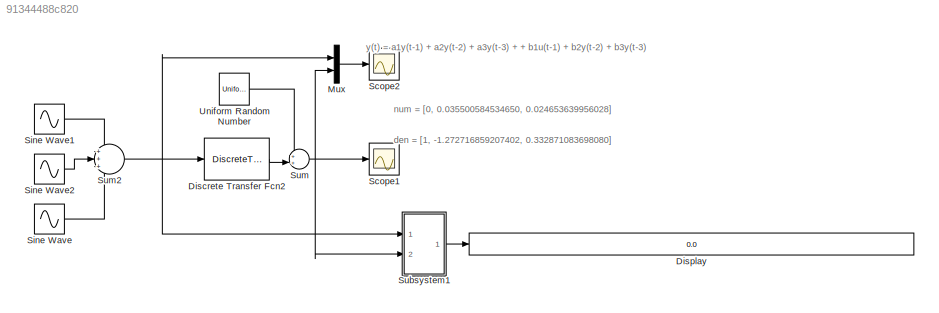
MODEL slx_91344488c820
KIND model
CONFIG AbsTol = auto
CONFIG EnableMultiTasking = off
CONFIG FixedStep = auto
CONFIG MaxStep = auto
CONFIG MinStep = auto
CONFIG RelTol = 1e-3
CONFIG SampleTimeConstraint = Unconstrained
CONFIG Solver = VariableStepAuto
CONFIG SolverName = VariableStepAuto
CONFIG StartTime = 0.0
CONFIG StopTime = 100
BLOCK [DiscreteTransferFcn] Discrete Transfer Fcn2
  Denominator = den
  InputPortMap = u0
  Numerator = num
  Ports = [1, 1]
  SampleTime = 0.1
BLOCK [Display] Display
  Decimation = 1
  Ports = [1]
BLOCK [Mux] Mux
  DisplayOption = bar
  Inputs = 2
  Ports = [2, 1]
BLOCK [Scope] Scope1
  Floating = off
  NumInputPorts = 1
  Ports = [1]
  ScopeSpecificationString = Simulink.scopes.TimeScopeBlockCfg('CurrentConfiguration', extmgr.ConfigurationSet(extmgr.Configuration('Core','General UI',true,'FigureColor',[1 1 1]),extmgr.Configuration('Core','Source UI',true),extmgr.Configuration('Sources','WiredSimulink',true,'DataLoggingVariableName','ScopeData2','DataLoggingSaveFormat','StructureWithTime','DataLoggingDecimation','1','DataLoggingDecimateData',true),extmgr.C...<+2927ch>
BLOCK [Scope] Scope2
  Floating = off
  NumInputPorts = 1
  Ports = [1]
  ScopeSpecificationString = Simulink.scopes.TimeScopeBlockCfg('CurrentConfiguration', extmgr.ConfigurationSet(extmgr.Configuration('Core','General UI',true,'FigureColor',[1 1 1]),extmgr.Configuration('Core','Source UI',true),extmgr.Configuration('Sources','WiredSimulink',true,'DataLoggingVariableName','ScopeData1','DataLoggingSaveFormat','StructureWithTime','DataLoggingDecimation','1','DataLoggingDecimateData',true),extmgr.C...<+2938ch>
BLOCK [Sin] Sine Wave
  Ports = [0, 1]
  SampleTime = 0
BLOCK [Sin] Sine Wave1
  Amplitude = 2
  Frequency = 0.5
  Ports = [0, 1]
  SampleTime = 0
BLOCK [Sin] Sine Wave2
  Frequency = 0.1
  Ports = [0, 1]
  SampleTime = 0
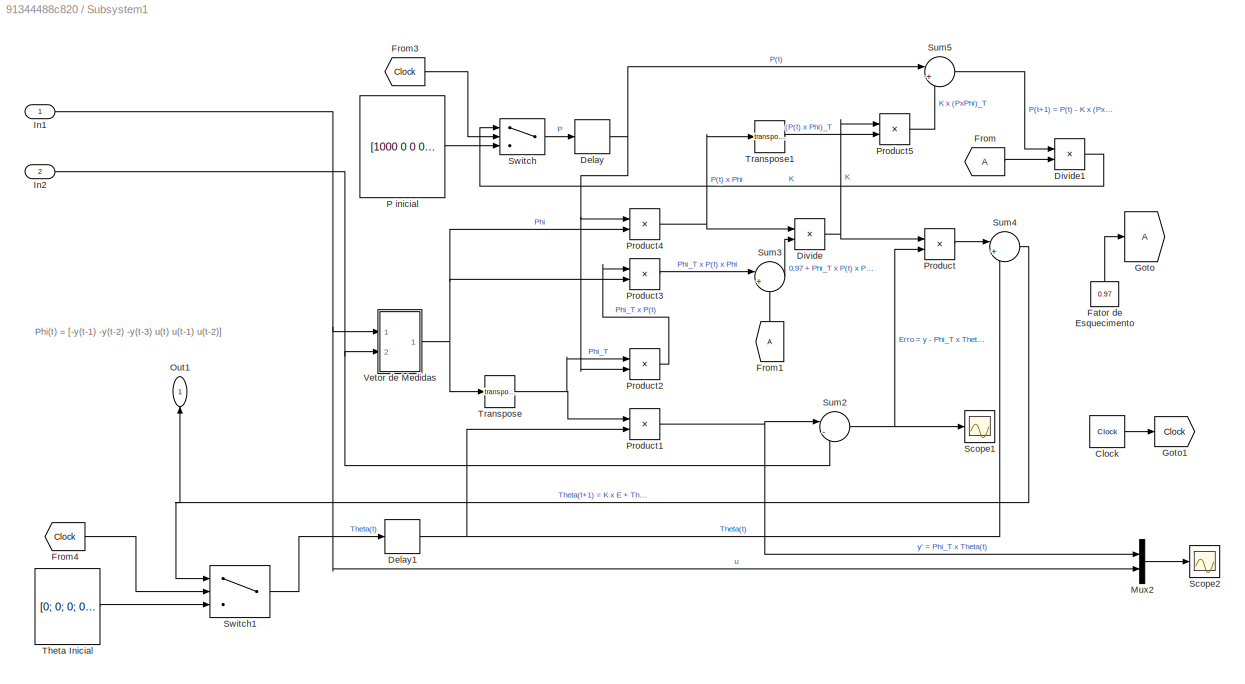
BLOCK [SubSystem] Subsystem1
  Ports = [2, 1]
  RequestExecContextInheritance = off
BLOCK [Clock] Subsystem1/Clock
BLOCK [Delay] Subsystem1/Delay
  DelayLength = 1
  InitialCondition = 0
  InputPortMap = u0
  Ports = [1, 1]
  SampleTime = 0.1
BLOCK [Delay] Subsystem1/Delay1
  DelayLength = 1
  InitialCondition = 0
  InputPortMap = u0
  Ports = [1, 1]
  SampleTime = 0.1
BLOCK [Product] Subsystem1/Divide
  InputSameDT = off
  Inputs = */
  OutDataTypeStr = Inherit: Inherit via internal rule
  Ports = [2, 1]
  RndMeth = Floor
  SaturateOnIntegerOverflow = off
BLOCK [Product] Subsystem1/Divide1
  InputSameDT = off
  Inputs = */
  OutDataTypeStr = Inherit: Inherit via internal rule
  Ports = [2, 1]
  RndMeth = Floor
  SaturateOnIntegerOverflow = off
BLOCK [Constant] Subsystem1/Fator de Esquecimento 
  Value = 0.97
BLOCK [From] Subsystem1/From
BLOCK [From] Subsystem1/From1
BLOCK [From] Subsystem1/From3
  GotoTag = Clock
BLOCK [From] Subsystem1/From4
  GotoTag = Clock
BLOCK [Goto] Subsystem1/Goto
BLOCK [Goto] Subsystem1/Goto1
  GotoTag = Clock
BLOCK [Inport] Subsystem1/In1
  IconDisplay = Port number
BLOCK [Inport] Subsystem1/In2
  IconDisplay = Port number
  Port = 2
BLOCK [Mux] Subsystem1/Mux2
  DisplayOption = bar
  Inputs = 2
  Ports = [2, 1]
BLOCK [Outport] Subsystem1/Out1
  IconDisplay = Port number
BLOCK [Constant] Subsystem1/P inicial
  Value = [1000 0 0 0 0 0; 0 1000 0 0 0 0; 0 0 1000 0 0 0; 0 0 0 1000 0 0; 0 0 0 0 1000 0; 0 0 0 0 0 1000]
BLOCK [Product] Subsystem1/Product
  InputSameDT = off
  OutDataTypeStr = Inherit: Inherit via internal rule
  Ports = [2, 1]
  RndMeth = Floor
  SaturateOnIntegerOverflow = off
BLOCK [Product] Subsystem1/Product1
  InputSameDT = off
  Multiplication = Matrix(*)
  OutDataTypeStr = Inherit: Inherit via internal rule
  Ports = [2, 1]
  RndMeth = Floor
  SaturateOnIntegerOverflow = off
BLOCK [Product] Subsystem1/Product2
  InputSameDT = off
  Multiplication = Matrix(*)
  OutDataTypeStr = Inherit: Inherit via internal rule
  Ports = [2, 1]
  RndMeth = Floor
  SaturateOnIntegerOverflow = off
BLOCK [Product] Subsystem1/Product3
  InputSameDT = off
  Multiplication = Matrix(*)
  OutDataTypeStr = Inherit: Inherit via internal rule
  Ports = [2, 1]
  RndMeth = Floor
  SaturateOnIntegerOverflow = off
BLOCK [Product] Subsystem1/Product4
  InputSameDT = off
  Multiplication = Matrix(*)
  OutDataTypeStr = Inherit: Inherit via internal rule
  Ports = [2, 1]
  RndMeth = Floor
  SaturateOnIntegerOverflow = off
BLOCK [Product] Subsystem1/Product5
  InputSameDT = off
  Multiplication = Matrix(*)
  OutDataTypeStr = Inherit: Inherit via internal rule
  Ports = [2, 1]
  RndMeth = Floor
  SaturateOnIntegerOverflow = off
BLOCK [Scope] Subsystem1/Scope1
  Floating = off
  NumInputPorts = 1
  Ports = [1]
  ScopeSpecificationString = Simulink.scopes.TimeScopeBlockCfg('CurrentConfiguration', extmgr.ConfigurationSet(extmgr.Configuration('Core','General UI',true,'FigureColor',[1 1 1]),extmgr.Configuration('Core','Source UI',true),extmgr.Configuration('Sources','WiredSimulink',true,'DataLoggingSaveFormat','StructureWithTime','DataLoggingDecimation','1','DataLoggingDecimateData',true),extmgr.Configuration('Visuals','Time Domain',tr...<+2871ch>
BLOCK [Scope] Subsystem1/Scope2
  Floating = off
  NumInputPorts = 1
  Ports = [1]
  ScopeSpecificationString = Simulink.scopes.TimeScopeBlockCfg('CurrentConfiguration', extmgr.ConfigurationSet(extmgr.Configuration('Core','General UI',true,'FigureColor',[1 1 1]),extmgr.Configuration('Core','Source UI',true),extmgr.Configuration('Sources','WiredSimulink',true,'DataLoggingSaveFormat','StructureWithTime','DataLoggingDecimation','1','DataLoggingDecimateData',true,'DataLoggingVariableName','ScopeData1'),extmgr.C...<+2914ch>
BLOCK [Sum] Subsystem1/Sum2
  IconShape = round
  InputSameDT = off
  Inputs = |-+
  OutDataTypeStr = Inherit: Inherit via internal rule
  Ports = [2, 1]
  SaturateOnIntegerOverflow = off
BLOCK [Sum] Subsystem1/Sum3
  IconShape = round
  InputSameDT = off
  Inputs = |++
  OutDataTypeStr = Inherit: Inherit via internal rule
  Ports = [2, 1]
  SaturateOnIntegerOverflow = off
BLOCK [Sum] Subsystem1/Sum4
  IconShape = round
  InputSameDT = off
  Inputs = |++
  OutDataTypeStr = Inherit: Inherit via internal rule
  Ports = [2, 1]
  SaturateOnIntegerOverflow = off
BLOCK [Sum] Subsystem1/Sum5
  IconShape = round
  InputSameDT = off
  Inputs = |+-
  OutDataTypeStr = Inherit: Inherit via internal rule
  Ports = [2, 1]
  SaturateOnIntegerOverflow = off
BLOCK [Switch] Subsystem1/Switch
  Criteria = u2 > Threshold
  InputSameDT = off
  SaturateOnIntegerOverflow = off
BLOCK [Switch] Subsystem1/Switch1
  Criteria = u2 > Threshold
  InputSameDT = off
  SaturateOnIntegerOverflow = off
BLOCK [Constant] Subsystem1/Theta Inicial 
  Value = [0; 0; 0; 0; 0; 0]
BLOCK [Math] Subsystem1/Transpose
  Operator = transpose
  Ports = [1, 1]
BLOCK [Math] Subsystem1/Transpose1
  Operator = transpose
  Ports = [1, 1]
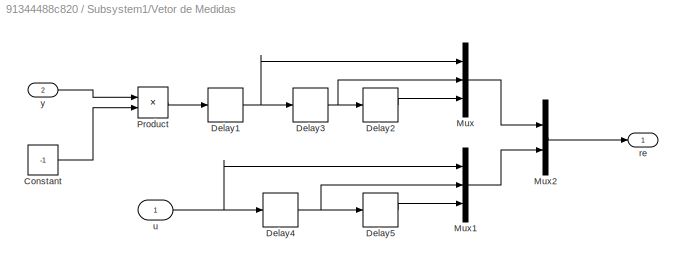
BLOCK [SubSystem] Subsystem1/Vetor de Medidas 
  Ports = [2, 1]
  RequestExecContextInheritance = off
BLOCK [Constant] Subsystem1/Vetor de Medidas /Constant
  Value = -1
BLOCK [Delay] Subsystem1/Vetor de Medidas /Delay1
  DelayLength = 1
  InitialCondition = 0
  InputPortMap = u0
  Ports = [1, 1]
  SampleTime = 0.1
BLOCK [Delay] Subsystem1/Vetor de Medidas /Delay2
  DelayLength = 1
  InitialCondition = 0
  InputPortMap = u0
  Ports = [1, 1]
  SampleTime = 0.1
BLOCK [Delay] Subsystem1/Vetor de Medidas /Delay3
  DelayLength = 1
  InitialCondition = 0
  InputPortMap = u0
  Ports = [1, 1]
  SampleTime = 0.1
BLOCK [Delay] Subsystem1/Vetor de Medidas /Delay4
  DelayLength = 1
  InitialCondition = 0
  InputPortMap = u0
  Ports = [1, 1]
  SampleTime = 0.1
BLOCK [Delay] Subsystem1/Vetor de Medidas /Delay5
  DelayLength = 1
  InitialCondition = 0
  InputPortMap = u0
  Ports = [1, 1]
  SampleTime = 0.1
BLOCK [Mux] Subsystem1/Vetor de Medidas /Mux
  DisplayOption = bar
  Inputs = 3
  Ports = [3, 1]
BLOCK [Mux] Subsystem1/Vetor de Medidas /Mux1
  DisplayOption = bar
  Inputs = 3
  Ports = [3, 1]
BLOCK [Mux] Subsystem1/Vetor de Medidas /Mux2
  DisplayOption = bar
  Inputs = 2
  Ports = [2, 1]
BLOCK [Product] Subsystem1/Vetor de Medidas /Product
  InputSameDT = off
  OutDataTypeStr = Inherit: Inherit via internal rule
  Ports = [2, 1]
  RndMeth = Floor
  SaturateOnIntegerOverflow = off
BLOCK [Outport] Subsystem1/Vetor de Medidas /re
  IconDisplay = Port number
BLOCK [Inport] Subsystem1/Vetor de Medidas /u
  IconDisplay = Port number
BLOCK [Inport] Subsystem1/Vetor de Medidas /y
  IconDisplay = Port number
  Port = 2
BLOCK [Sum] Sum
  IconShape = round
  InputSameDT = off
  Inputs = ++|
  OutDataTypeStr = Inherit: Inherit via internal rule
  Ports = [2, 1]
  SaturateOnIntegerOverflow = off
BLOCK [Sum] Sum2
  IconShape = round
  InputSameDT = off
  Inputs = +++
  OutDataTypeStr = Inherit: Inherit via internal rule
  Ports = [3, 1]
  SaturateOnIntegerOverflow = off
BLOCK [UniformRandomNumber] Uniform Random Number
  Maximum = 0.01
  Minimum = -0.01
  SampleTime = 0.1
ANNOTATION (root): den = [1, -1.272716859207402, 0.332871083698080]
ANNOTATION (root): num = [0, 0.035500584534650, 0.024653639956028]
ANNOTATION (root): y(t) = a1y(t-1) + a2y(t-2) + a3y(t-3) + + b1u(t-1) + b2y(t-2) + b3y(t-3)
ANNOTATION Subsystem1: Phi(t) = [-y(t-1) -y(t-2) -y(t-3) u(t) u(t-1) u(t-2)]
LINE Discrete Transfer Fcn2:1 -> Sum:2
LINE Mux:1 -> Scope2:1
LINE Sine Wave1:1 -> Sum2:1
LINE Sine Wave2:1 -> Sum2:2
LINE Sine Wave:1 -> Sum2:3
LINE Subsystem1/Clock:1 -> Subsystem1/Goto1:1
NET Subsystem1/Delay1:1 -> Subsystem1/Product1:2, Subsystem1/Sum4:2
NET Subsystem1/Delay:1 -> Subsystem1/Product2:2, Subsystem1/Product4:1, Subsystem1/Sum5:1
LINE Subsystem1/Divide1:1 -> Subsystem1/Switch:1
NET Subsystem1/Divide:1 -> Subsystem1/Product5:1, Subsystem1/Product:1
LINE Subsystem1/Fator de Esquecimento :1 -> Subsystem1/Goto:1
LINE Subsystem1/From1:1 -> Subsystem1/Sum3:2
LINE Subsystem1/From3:1 -> Subsystem1/Switch:2
LINE Subsystem1/From4:1 -> Subsystem1/Switch1:2
LINE Subsystem1/From:1 -> Subsystem1/Divide1:2
NET Subsystem1/In1:1 -> Subsystem1/Mux2:2, Subsystem1/Vetor de Medidas :1
NET Subsystem1/In2:1 -> Subsystem1/Sum2:2, Subsystem1/Vetor de Medidas :2
LINE Subsystem1/Mux2:1 -> Subsystem1/Scope2:1
LINE Subsystem1/P inicial:1 -> Subsystem1/Switch:3
NET Subsystem1/Product1:1 -> Subsystem1/Mux2:1, Subsystem1/Sum2:1
LINE Subsystem1/Product2:1 -> Subsystem1/Product3:1
LINE Subsystem1/Product3:1 -> Subsystem1/Sum3:1
NET Subsystem1/Product4:1 -> Subsystem1/Divide:1, Subsystem1/Transpose1:1
LINE Subsystem1/Product5:1 -> Subsystem1/Sum5:2
LINE Subsystem1/Product:1 -> Subsystem1/Sum4:1
NET Subsystem1/Sum2:1 -> Subsystem1/Product:2, Subsystem1/Scope1:1
LINE Subsystem1/Sum3:1 -> Subsystem1/Divide:2
NET Subsystem1/Sum4:1 -> Subsystem1/Out1:1, Subsystem1/Switch1:1
LINE Subsystem1/Sum5:1 -> Subsystem1/Divide1:1
LINE Subsystem1/Switch1:1 -> Subsystem1/Delay1:1
LINE Subsystem1/Switch:1 -> Subsystem1/Delay:1
LINE Subsystem1/Theta Inicial :1 -> Subsystem1/Switch1:3
LINE Subsystem1/Transpose1:1 -> Subsystem1/Product5:2
NET Subsystem1/Transpose:1 -> Subsystem1/Product1:1, Subsystem1/Product2:1
LINE Subsystem1/Vetor de Medidas /Constant:1 -> Subsystem1/Vetor de Medidas /Product:2
NET Subsystem1/Vetor de Medidas /Delay1:1 -> Subsystem1/Vetor de Medidas /Delay3:1, Subsystem1/Vetor de Medidas /Mux:1
LINE Subsystem1/Vetor de Medidas /Delay2:1 -> Subsystem1/Vetor de Medidas /Mux:3
NET Subsystem1/Vetor de Medidas /Delay3:1 -> Subsystem1/Vetor de Medidas /Delay2:1, Subsystem1/Vetor de Medidas /Mux:2
NET Subsystem1/Vetor de Medidas /Delay4:1 -> Subsystem1/Vetor de Medidas /Delay5:1, Subsystem1/Vetor de Medidas /Mux1:2
LINE Subsystem1/Vetor de Medidas /Delay5:1 -> Subsystem1/Vetor de Medidas /Mux1:3
LINE Subsystem1/Vetor de Medidas /Mux1:1 -> Subsystem1/Vetor de Medidas /Mux2:2
LINE Subsystem1/Vetor de Medidas /Mux2:1 -> Subsystem1/Vetor de Medidas /re:1
LINE Subsystem1/Vetor de Medidas /Mux:1 -> Subsystem1/Vetor de Medidas /Mux2:1
LINE Subsystem1/Vetor de Medidas /Product:1 -> Subsystem1/Vetor de Medidas /Delay1:1
NET Subsystem1/Vetor de Medidas /u:1 -> Subsystem1/Vetor de Medidas /Delay4:1, Subsystem1/Vetor de Medidas /Mux1:1
LINE Subsystem1/Vetor de Medidas /y:1 -> Subsystem1/Vetor de Medidas /Product:1
NET Subsystem1/Vetor de Medidas :1 -> Subsystem1/Product3:2, Subsystem1/Product4:2, Subsystem1/Transpose:1
LINE Subsystem1:1 -> Display:1
NET Sum2:1 -> Discrete Transfer Fcn2:1, Mux:1, Subsystem1:1
NET Sum:1 -> Mux:2, Scope1:1, Subsystem1:2
LINE Uniform Random Number:1 -> Sum:1
note: NET lines group one-source signal fan-out (src -> all destinations, sorted); 1:1 wires keep LINE
